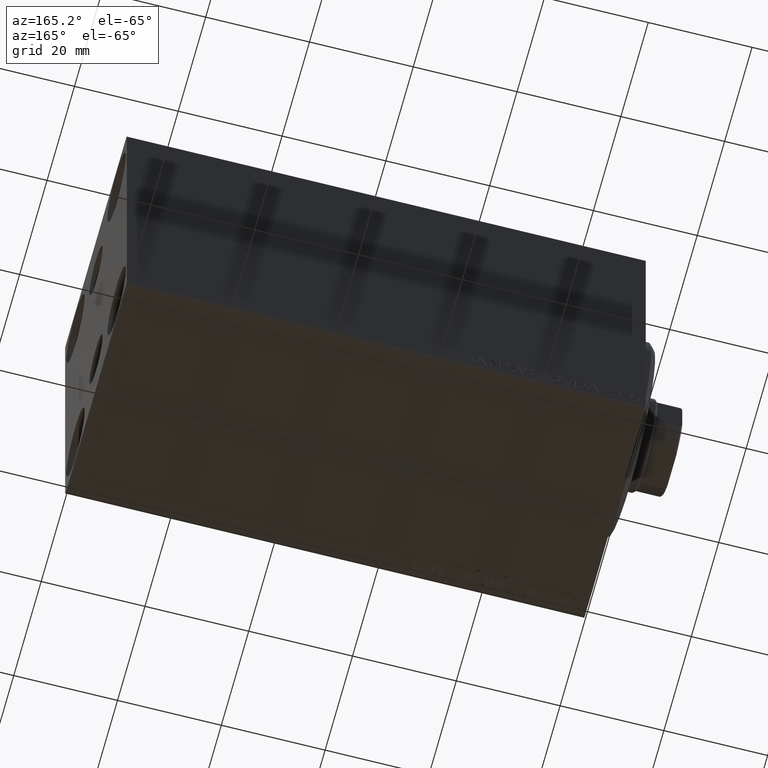
[diagram: clean part render]
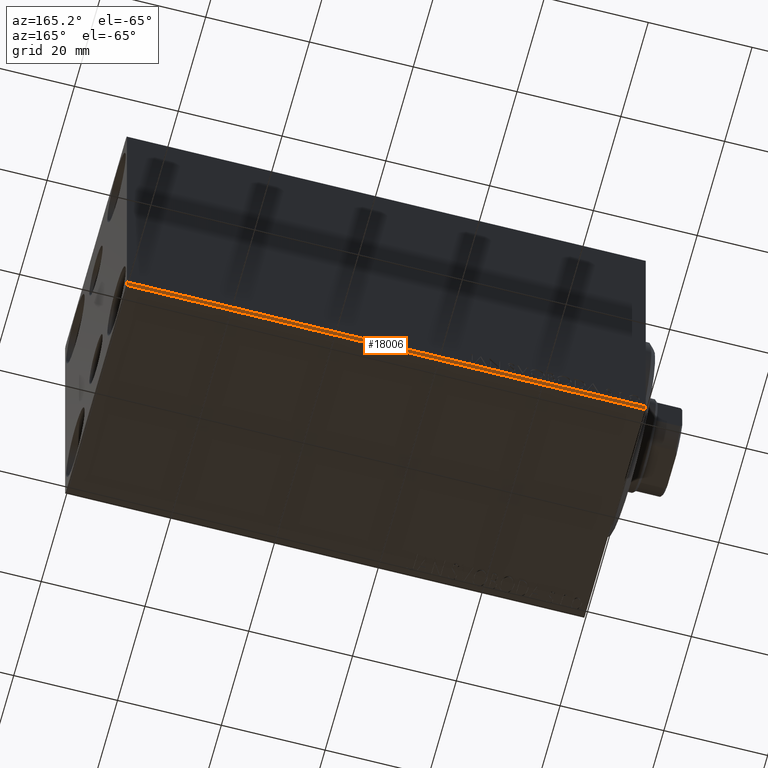
[diagram: same view with one face highlighted and labeled with its STEP entity id]
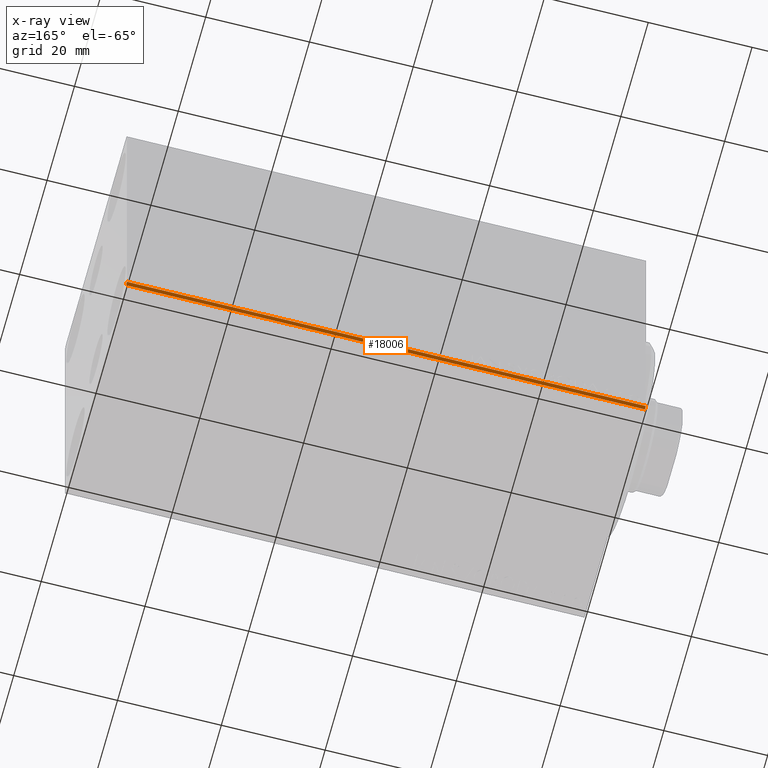
[diagram: x-ray of the same camera — body ghosted, the highlighted face saturated]
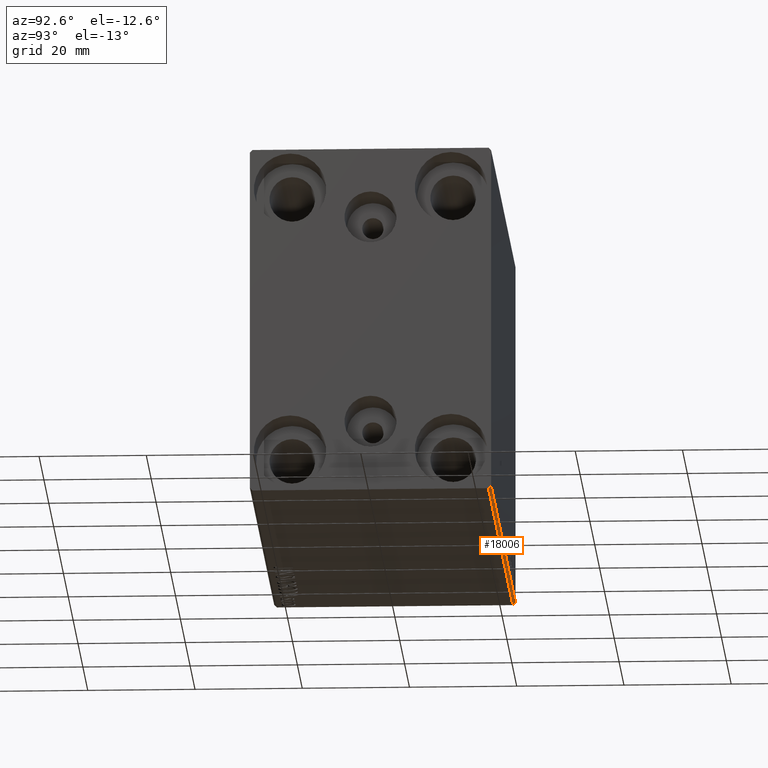
[diagram: same view with one face highlighted and labeled with its STEP entity id]
A machine part, auxiliary view. The second image highlights one B-rep face of the part: STEP entity #18006.
The next image is the same camera in x-ray: the body ghosted, the highlighted face saturated — about 0% of this face is hidden behind the body in this view.
A second angle (auxiliary view) of the same face is appended — the face is thin or edge-on in the first view.
In plain terms, the highlighted planar face has unit normal (0, -0.7071, 0.7071).
Its self-contained STEP definition (entity closure, byte-faithful):
#524 = CARTESIAN_POINT ( 'NONE',  ( 0.000000000000000000, 22.50000000000000000, -32.00000000000000711 ) ) ;
#1841 = EDGE_CURVE ( 'NONE', #40424, #22298, #19151, .T. ) ;
#4679 = CARTESIAN_POINT ( 'NONE',  ( 100.0000000000000000, 22.50000000000000000, -32.00000000000000711 ) ) ;
#5421 = CARTESIAN_POINT ( 'NONE',  ( 100.0000000000000000, 22.50000000000000000, -32.00000000000000711 ) ) ;
#6571 = DIRECTION ( 'NONE',  ( 0.000000000000000000, -0.7071067811865475727, 0.7071067811865475727 ) ) ;
#6790 = CARTESIAN_POINT ( 'NONE',  ( 100.0000000000000000, 22.50000000000000000, -32.00000000000000711 ) ) ;
#7136 = EDGE_LOOP ( 'NONE', ( #35235, #11406, #25728, #39515 ) ) ;
#8712 = CARTESIAN_POINT ( 'NONE',  ( 100.0000000000000000, 21.99999999999998579, -32.50000000000000711 ) ) ;
#10332 = EDGE_CURVE ( 'NONE', #35363, #31187, #26030, .T. ) ;
#11406 = ORIENTED_EDGE ( 'NONE', *, *, #10332, .F. ) ;
#17631 = FACE_OUTER_BOUND ( 'NONE', #7136, .T. ) ;
#18006 = ADVANCED_FACE ( 'NONE', ( #17631 ), #37126, .F. ) ;
#18456 = DIRECTION ( 'NONE',  ( 0.000000000000000000, -0.7071067811865474617, -0.7071067811865474617 ) ) ;
#18459 = EDGE_CURVE ( 'NONE', #31187, #40424, #40025, .T. ) ;
#19151 = LINE ( 'NONE', #5421, #36822 ) ;
#19230 = DIRECTION ( 'NONE',  ( -0.000000000000000000, 0.7071067811865474617, 0.7071067811865474617 ) ) ;
#21197 = CARTESIAN_POINT ( 'NONE',  ( 0.000000000000000000, 22.50000000000000000, -32.00000000000000711 ) ) ;
#22298 = VERTEX_POINT ( 'NONE', #21197 ) ;
#22730 = VECTOR ( 'NONE', #19230, 1000.000000000000114 ) ;
#22984 = CARTESIAN_POINT ( 'NONE',  ( 100.0000000000000000, 27.25000000000000355, -27.25000000000000355 ) ) ;
#25470 = CARTESIAN_POINT ( 'NONE',  ( 0.000000000000000000, 21.99999999999998579, -32.50000000000000711 ) ) ;
#25596 = CARTESIAN_POINT ( 'NONE',  ( 100.0000000000000000, 22.00000000000000000, -32.50000000000000711 ) ) ;
#25728 = ORIENTED_EDGE ( 'NONE', *, *, #42953, .F. ) ;
#26030 = LINE ( 'NONE', #25596, #26406 ) ;
#26406 = VECTOR ( 'NONE', #36214, 1000.000000000000000 ) ;
#31187 = VERTEX_POINT ( 'NONE', #8712 ) ;
#31312 = LINE ( 'NONE', #524, #40089 ) ;
#32438 = DIRECTION ( 'NONE',  ( -1.000000000000000000, 0.000000000000000000, 0.000000000000000000 ) ) ;
#34018 = DIRECTION ( 'NONE',  ( -1.000000000000000000, 0.000000000000000000, 0.000000000000000000 ) ) ;
#35235 = ORIENTED_EDGE ( 'NONE', *, *, #18459, .F. ) ;
#35363 = VERTEX_POINT ( 'NONE', #25470 ) ;
#36214 = DIRECTION ( 'NONE',  ( 1.000000000000000000, 0.000000000000000000, 0.000000000000000000 ) ) ;
#36822 = VECTOR ( 'NONE', #32438, 1000.000000000000000 ) ;
#37126 = PLANE ( 'NONE',  #43240 ) ;
#39515 = ORIENTED_EDGE ( 'NONE', *, *, #1841, .F. ) ;
#40025 = LINE ( 'NONE', #22984, #22730 ) ;
#40089 = VECTOR ( 'NONE', #18456, 1000.000000000000114 ) ;
#40424 = VERTEX_POINT ( 'NONE', #4679 ) ;
#42953 = EDGE_CURVE ( 'NONE', #22298, #35363, #31312, .T. ) ;
#43240 = AXIS2_PLACEMENT_3D ( 'NONE', #6790, #6571, #34018 ) ;